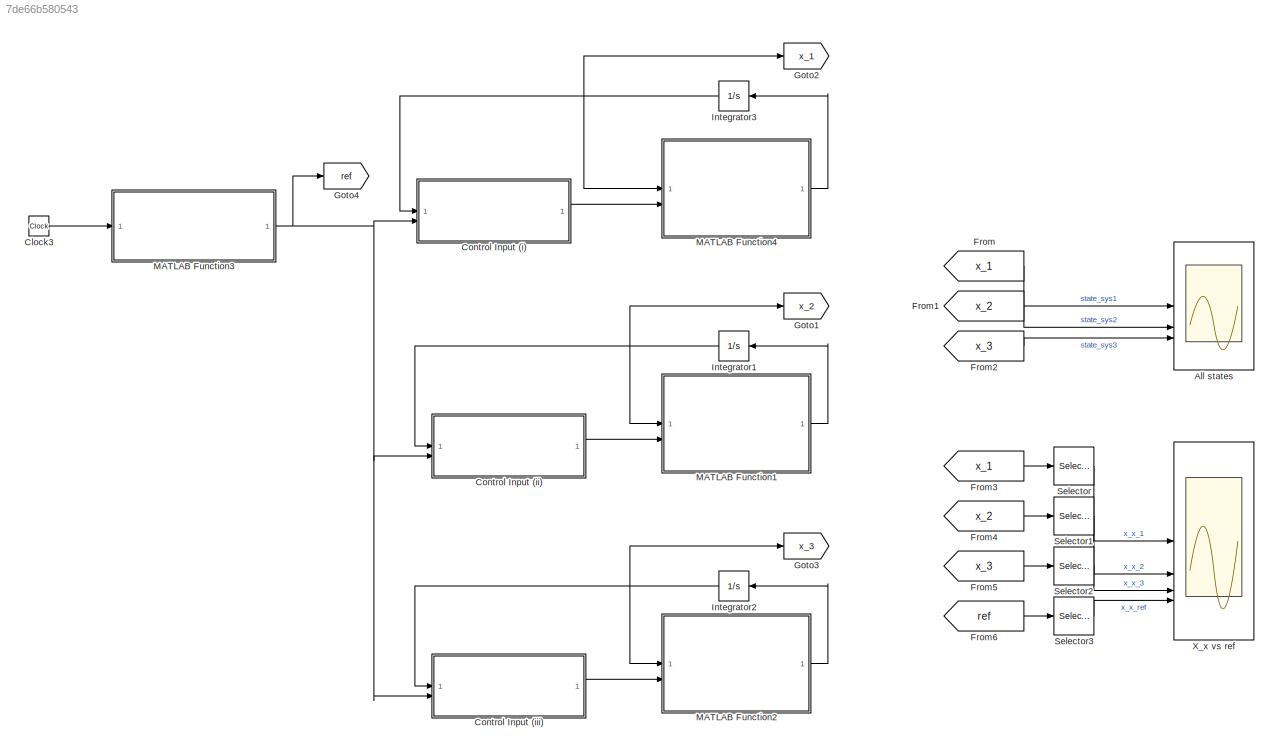
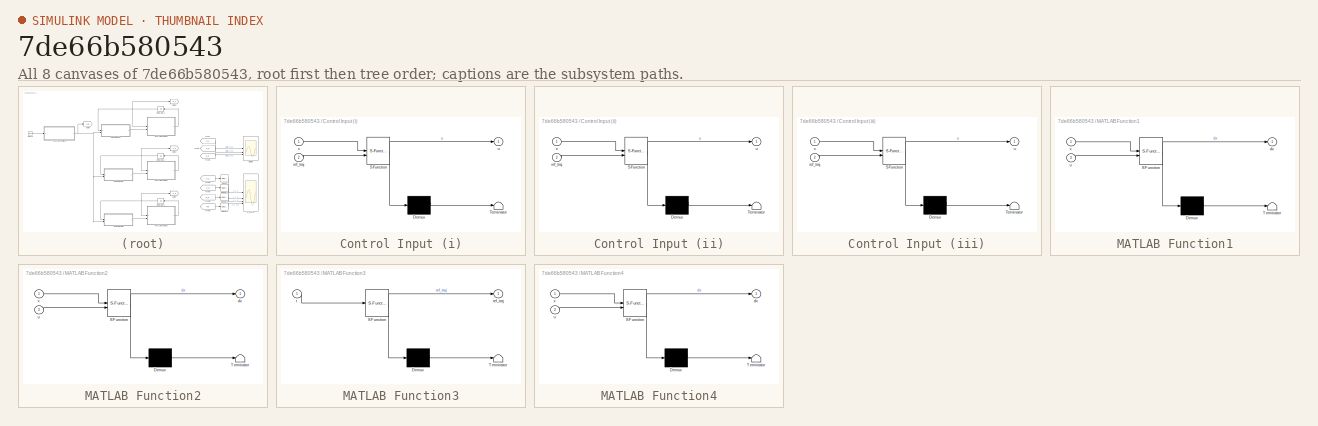
[diagram: thumbnail index - all 8 canvases of the model, root first then tree order]
MODEL slx_7de66b580543
KIND model
CONFIG AbsTol = auto
CONFIG EnableMultiTasking = off
CONFIG FixedStep = 0.001
CONFIG MaxStep = auto
CONFIG MinStep = auto
CONFIG RelTol = 1e-3
CONFIG SampleTimeConstraint = Unconstrained
CONFIG SolverName = ode1
CONFIG StartTime = 0.0
CONFIG StopTime = 50
BLOCK [Scope] All states
  Floating = off
  NumInputPorts = 3
  ScopeSpecificationString = Simulink.scopes.TimeScopeBlockCfg('CurrentConfiguration', extmgr.ConfigurationSet(extmgr.Configuration('Core','General UI',true),extmgr.Configuration('Core','Source UI',true),extmgr.Configuration('Sources','WiredSimulink',true),extmgr.Configuration('Visuals','Time Domain',true,'SerializedDisplays',{struct('MinYLimReal','-0.09313','MaxYLimReal','0.09143','YLabelReal','','MinYLimMag','0.00000','MaxY...<+3147ch>
BLOCK [Clock] Clock3
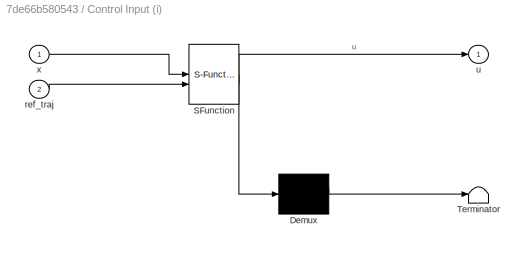
BLOCK [SubSystem] Control Input (i)
  ErrorFcn = Stateflow.Translate.translate
  PermitHierarchicalResolution = ExplicitOnly
  SFBlockType = MATLAB Function
  TreatAsAtomicUnit = on
BLOCK [Demux] Control Input (i)/ Demux 
  Outputs = 1
BLOCK [S-Function] Control Input (i)/ SFunction 
  EnableBusSupport = on
  FunctionName = sf_sfun
  Parameters = par
  PortCounts = [2 2]
  SFcnIsStateOwnerBlock = off
  SFunctionDeploymentMode = off
  Tag = Stateflow S-Function 5
BLOCK [Terminator] Control Input (i)/ Terminator 
BLOCK [Inport] Control Input (i)/ref_traj
  Port = 2
BLOCK [Outport] Control Input (i)/u
BLOCK [Inport] Control Input (i)/x
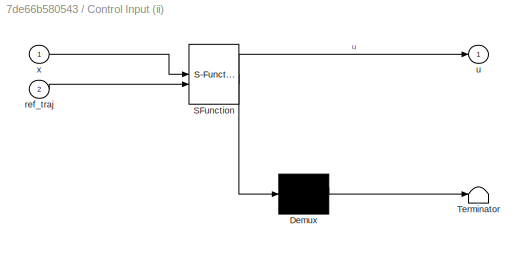
BLOCK [SubSystem] Control Input (ii)
  ErrorFcn = Stateflow.Translate.translate
  PermitHierarchicalResolution = ExplicitOnly
  SFBlockType = MATLAB Function
  TreatAsAtomicUnit = on
BLOCK [Demux] Control Input (ii)/ Demux 
  Outputs = 1
BLOCK [S-Function] Control Input (ii)/ SFunction 
  EnableBusSupport = on
  FunctionName = sf_sfun
  Parameters = par
  PortCounts = [2 2]
  SFcnIsStateOwnerBlock = off
  SFunctionDeploymentMode = off
  Tag = Stateflow S-Function 2
BLOCK [Terminator] Control Input (ii)/ Terminator 
BLOCK [Inport] Control Input (ii)/ref_traj
  Port = 2
BLOCK [Outport] Control Input (ii)/u
BLOCK [Inport] Control Input (ii)/x
BLOCK [SubSystem] Control Input (iii)
  ErrorFcn = Stateflow.Translate.translate
  PermitHierarchicalResolution = ExplicitOnly
  SFBlockType = MATLAB Function
  TreatAsAtomicUnit = on
BLOCK [Demux] Control Input (iii)/ Demux 
  Outputs = 1
BLOCK [S-Function] Control Input (iii)/ SFunction 
  EnableBusSupport = on
  FunctionName = sf_sfun
  Parameters = par
  PortCounts = [2 2]
  SFcnIsStateOwnerBlock = off
  SFunctionDeploymentMode = off
  Tag = Stateflow S-Function 7
BLOCK [Terminator] Control Input (iii)/ Terminator 
BLOCK [Inport] Control Input (iii)/ref_traj
  Port = 2
BLOCK [Outport] Control Input (iii)/u
BLOCK [Inport] Control Input (iii)/x
BLOCK [From] From
  GotoTag = x_1
BLOCK [From] From1
  GotoTag = x_2
BLOCK [From] From2
  GotoTag = x_3
BLOCK [From] From3
  GotoTag = x_1
BLOCK [From] From4
  GotoTag = x_2
BLOCK [From] From5
  GotoTag = x_3
BLOCK [From] From6
  GotoTag = ref
BLOCK [Goto] Goto1
  GotoTag = x_2
BLOCK [Goto] Goto2
  GotoTag = x_1
BLOCK [Goto] Goto3
  GotoTag = x_3
BLOCK [Goto] Goto4
  GotoTag = ref
BLOCK [Integrator] Integrator1
  InitialCondition = [0;0;0;0]
BLOCK [Integrator] Integrator2
  InitialCondition = [0;0;0;0]
BLOCK [Integrator] Integrator3
  InitialCondition = [0;0;0;0]
BLOCK [SubSystem] MATLAB Function1
  ErrorFcn = Stateflow.Translate.translate
  PermitHierarchicalResolution = ExplicitOnly
  SFBlockType = MATLAB Function
  TreatAsAtomicUnit = on
BLOCK [Demux] MATLAB Function1/ Demux 
  Outputs = 1
BLOCK [S-Function] MATLAB Function1/ SFunction 
  EnableBusSupport = on
  FunctionName = sf_sfun
  Parameters = par
  PortCounts = [2 2]
  SFcnIsStateOwnerBlock = off
  SFunctionDeploymentMode = off
  Tag = Stateflow S-Function 1
BLOCK [Terminator] MATLAB Function1/ Terminator 
BLOCK [Outport] MATLAB Function1/dx
BLOCK [Inport] MATLAB Function1/u
  Port = 2
BLOCK [Inport] MATLAB Function1/x
BLOCK [SubSystem] MATLAB Function2
  ErrorFcn = Stateflow.Translate.translate
  PermitHierarchicalResolution = ExplicitOnly
  SFBlockType = MATLAB Function
  TreatAsAtomicUnit = on
BLOCK [Demux] MATLAB Function2/ Demux 
  Outputs = 1
BLOCK [S-Function] MATLAB Function2/ SFunction 
  EnableBusSupport = on
  FunctionName = sf_sfun
  Parameters = par
  PortCounts = [2 2]
  SFcnIsStateOwnerBlock = off
  SFunctionDeploymentMode = off
  Tag = Stateflow S-Function 3
BLOCK [Terminator] MATLAB Function2/ Terminator 
BLOCK [Outport] MATLAB Function2/dx
BLOCK [Inport] MATLAB Function2/u
  Port = 2
BLOCK [Inport] MATLAB Function2/x
BLOCK [SubSystem] MATLAB Function3
  ErrorFcn = Stateflow.Translate.translate
  PermitHierarchicalResolution = ExplicitOnly
  SFBlockType = MATLAB Function
  TreatAsAtomicUnit = on
BLOCK [Demux] MATLAB Function3/ Demux 
  Outputs = 1
BLOCK [S-Function] MATLAB Function3/ SFunction 
  EnableBusSupport = on
  FunctionName = sf_sfun
  PortCounts = [1 2]
  SFcnIsStateOwnerBlock = off
  SFunctionDeploymentMode = off
  Tag = Stateflow S-Function 4
BLOCK [Terminator] MATLAB Function3/ Terminator 
BLOCK [Outport] MATLAB Function3/ref_traj
BLOCK [Inport] MATLAB Function3/t
BLOCK [SubSystem] MATLAB Function4
  ErrorFcn = Stateflow.Translate.translate
  PermitHierarchicalResolution = ExplicitOnly
  SFBlockType = MATLAB Function
  TreatAsAtomicUnit = on
BLOCK [Demux] MATLAB Function4/ Demux 
  Outputs = 1
BLOCK [S-Function] MATLAB Function4/ SFunction 
  EnableBusSupport = on
  FunctionName = sf_sfun
  Parameters = par
  PortCounts = [2 2]
  SFcnIsStateOwnerBlock = off
  SFunctionDeploymentMode = off
  Tag = Stateflow S-Function 6
BLOCK [Terminator] MATLAB Function4/ Terminator 
BLOCK [Outport] MATLAB Function4/dx
BLOCK [Inport] MATLAB Function4/u
  Port = 2
BLOCK [Inport] MATLAB Function4/x
BLOCK [Selector] Selector
  IndexOptions = Index vector (dialog)
  Indices = [1]
  InputPortWidth = 4
  OutputSizes = 1
BLOCK [Selector] Selector1
  IndexOptions = Index vector (dialog)
  Indices = [1]
  InputPortWidth = 4
  OutputSizes = 1
BLOCK [Selector] Selector2
  IndexOptions = Index vector (dialog)
  Indices = [1]
  InputPortWidth = 4
  OutputSizes = 1
BLOCK [Selector] Selector3
  IndexOptions = Index vector (dialog)
  Indices = [1]
  InputPortWidth = 5
  OutputSizes = 1
BLOCK [Scope] X_x vs ref
  Floating = off
  NumInputPorts = 4
  ScopeSpecificationString = Simulink.scopes.TimeScopeBlockCfg('CurrentConfiguration', extmgr.ConfigurationSet(extmgr.Configuration('Core','General UI',true),extmgr.Configuration('Core','Source UI',true),extmgr.Configuration('Sources','WiredSimulink',true,'DataLoggingVariableName','ScopeData1'),extmgr.Configuration('Visuals','Time Domain',true,'SerializedDisplays',{struct('MinYLimReal','-0.05569','MaxYLimReal','0.06918','YLab...<+1715ch>
LINE Clock3:1 -> MATLAB Function3:1
LINE Control Input (i):1 -> MATLAB Function4:2
LINE Control Input (ii):1 -> MATLAB Function1:2
LINE Control Input (iii):1 -> MATLAB Function2:2
LINE From1:1 -> All states:2
LINE From2:1 -> All states:3
LINE From3:1 -> Selector:1
LINE From4:1 -> Selector1:1
LINE From5:1 -> Selector2:1
LINE From6:1 -> Selector3:1
LINE From:1 -> All states:1
NET Integrator1:1 -> Control Input (ii):1, Goto1:1, MATLAB Function1:1
NET Integrator2:1 -> Control Input (iii):1, Goto3:1, MATLAB Function2:1
NET Integrator3:1 -> Control Input (i):1, Goto2:1, MATLAB Function4:1
LINE MATLAB Function1:1 -> Integrator1:1
LINE MATLAB Function2:1 -> Integrator2:1
NET MATLAB Function3:1 -> Control Input (i):2, Control Input (ii):2, Control Input (iii):2, Goto4:1
LINE MATLAB Function4:1 -> Integrator3:1
LINE Selector1:1 -> X_x vs ref:2
LINE Selector2:1 -> X_x vs ref:3
LINE Selector3:1 -> X_x vs ref:4
LINE Selector:1 -> X_x vs ref:1
note: NET lines group one-source signal fan-out (src -> all destinations, sorted); 1:1 wires keep LINE
CHART MATLAB Function1 states=1 transitions=1
  STATE_LABEL 'eML_blk_kernel()'
  STATE_LABEL 'SCRIPT:\nfunction dx = ball_and_beam(x,u, par)\n    \n    % system parameters\n    g = par.g;\n\n    % state vector\n    x1 = x(1);\n    x2 = x(2);\n    x3 = x(3);\n    x4 = x(4);\n         \n    % preallocate f vector then put the symbolic expressions calculated\n    % from the system model\n    f = zeros(4,1);\n    f(1) = x2;\n    f(2) = (5*x1*x4^2)/7 - (5*g*sin(x3))/7;\n    f(3) = x4;\n    \n    gx = [0; 0; 0; 1]...<+26ch>'  <repeated x3 — deduplicated; at blocks: MATLAB Function1, MATLAB Function2, MATLAB Function4>
CHART Control Input (ii) states=1 transitions=1
  STATE_LABEL 'eML_blk_kernel()'
  STATE_LABEL 'SCRIPT:\nfunction u = controlInput_II( x, ref_traj, par)\n    \n    % Coefficients of the hurwitz polynomial\n    p0 = par.p(1);\n    p1 = par.p(2);\n    p2 = par.p(3);\n    p3 = par.p(4);\n    \n    % System parameters\n    g = par.g;\n\n    % Reference trajectories and the derivatives from the trajectory\n    % generator function\n    y_ref       = ref_traj(1);\n    y_ref_dot   = ref_traj(2);\n    y_ref_ddot  =...<+429ch>'
CHART MATLAB Function2 states=1 transitions=1
  STATE_LABEL 'eML_blk_kernel()'
CHART MATLAB Function3 states=1 transitions=1
  STATE_LABEL 'eML_blk_kernel()'
  STATE_LABEL 'SCRIPT:\nfunction ref_traj = Trajectory_Generator(t)\n\n    % Preallocate the reference trajectory and derivatives vector\n    ref_traj = zeros(5,1);\n\n    % Symbolic expressions as calculated in remark 5.1\n    ref_traj(1) =  cos((pi*t)/2)/25;\n    ref_traj(2) = -(pi*sin((pi*t)/2))/50;\n    ref_traj(3) = -(pi^2*cos((pi*t)/2))/100;\n    ref_traj(4) =  (pi^3*sin((pi*t)/2))/200;\n    ref_traj(5) =  (pi^4*cos(...<+21ch>'
CHART Control Input (i) states=1 transitions=1
  STATE_LABEL 'eML_blk_kernel()'
  STATE_LABEL 'SCRIPT:\nfunction u = controlInput_I( x, ref_traj, par)\n    \n    % Coefficients of the hurwitz polynomial\n    p0 = par.p(1);\n    p1 = par.p(2);\n    p2 = par.p(3);\n    p3 = par.p(4);\n    \n    % System parameters\n    g = par.g;\n\n    % Reference trajectories and the derivatives from the trajectory\n    % generator function\n    y_ref       = ref_traj(1);\n    y_ref_dot   = ref_traj(2);\n    y_ref_ddot  = ...<+486ch>'
CHART MATLAB Function4 states=1 transitions=1
  STATE_LABEL 'eML_blk_kernel()'
CHART Control Input (iii) states=1 transitions=1
  STATE_LABEL 'eML_blk_kernel()'
  STATE_LABEL 'SCRIPT:\nfunction u = controlInput_III( x, ref_traj, par)\n    \n    % Coefficients of the hurwitz polynomial\n    p0 = par.p(1);\n    p1 = par.p(2);\n    p2 = par.p(3);\n    p3 = par.p(4);\n    \n    % System parameters\n    g = par.g;\n\n    % Reference trajectories and the derivatives from the trajectory\n    % generator function\n    y_ref       = ref_traj(1);\n    y_ref_dot   = ref_traj(2);\n    y_ref_ddot  ...<+384ch>'
CHART  states=0 transitions=0
CHART  states=0 transitions=0
CHART  states=0 transitions=0
CHART  states=0 transitions=0
CHART  states=0 transitions=0
CHART  states=0 transitions=0
CHART  states=0 transitions=0
